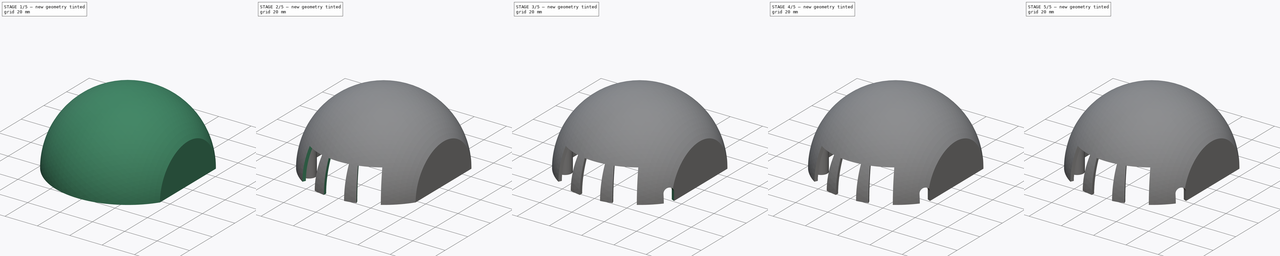
[diagram: build sequence overview — one tinted view per stage of 5, left to right]
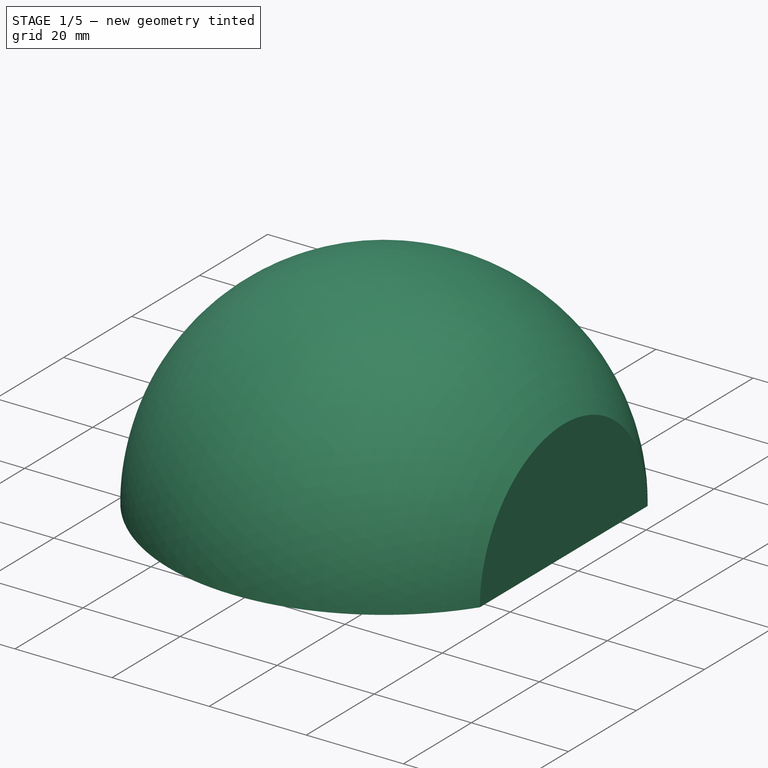
[diagram: stage 1 of 5 — iso view after this stage's code; geometry added in this stage tinted green]
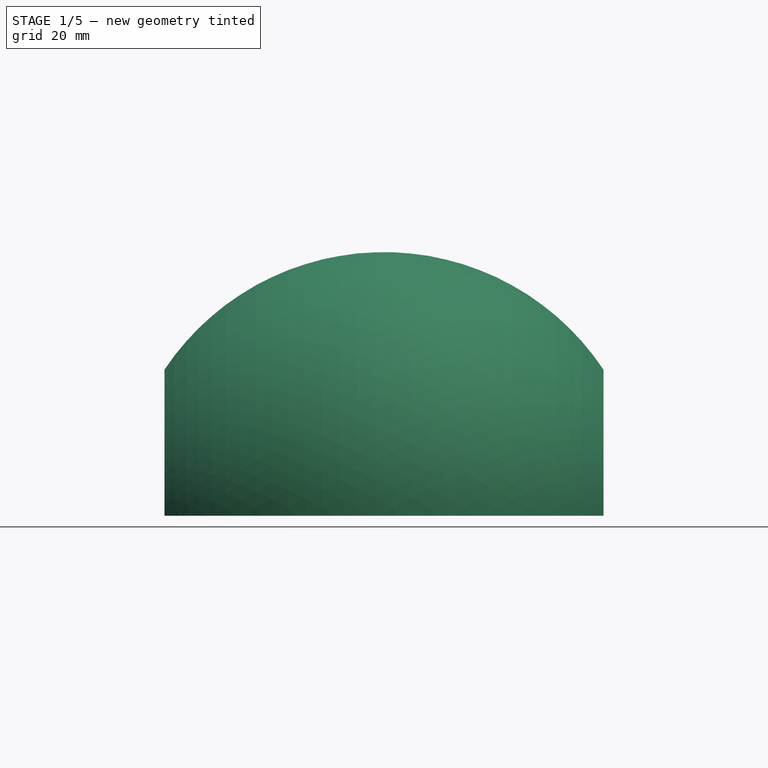
[diagram: stage 1 of 5 — front view after this stage's code; geometry added in this stage tinted green]
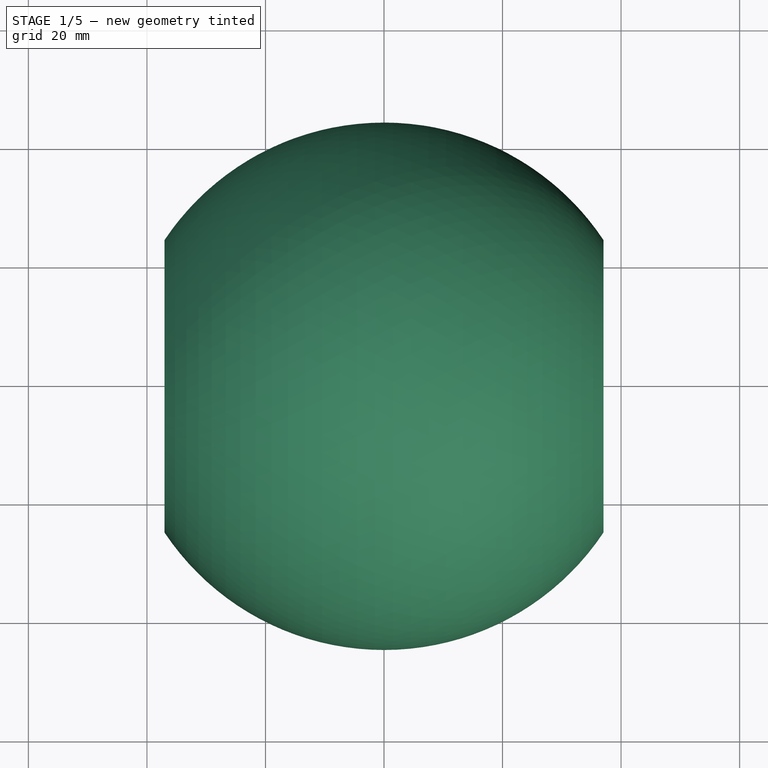
[diagram: stage 1 of 5 — top view after this stage's code; geometry added in this stage tinted green]
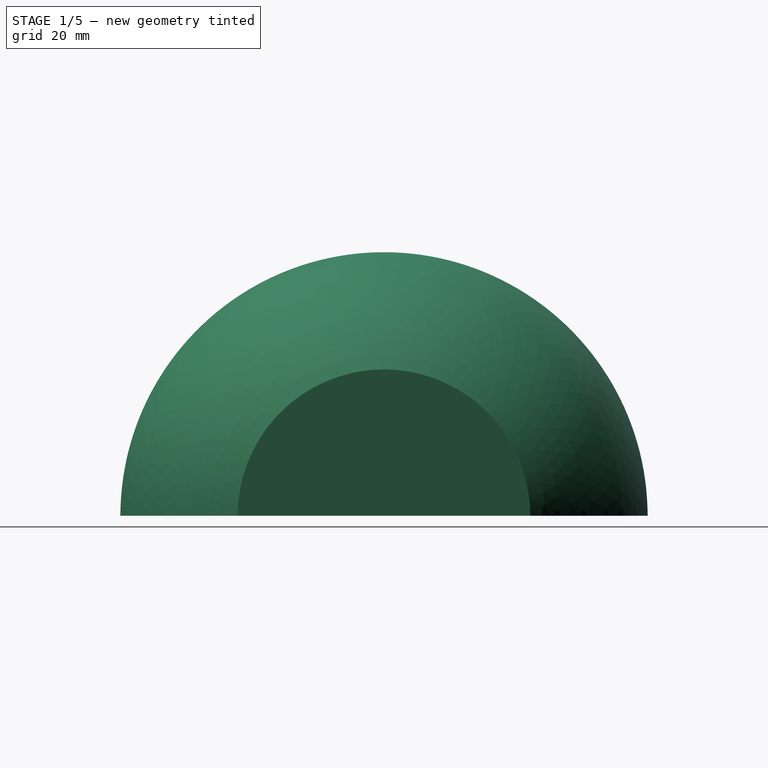
[diagram: stage 1 of 5 — right view after this stage's code; geometry added in this stage tinted green]
FCSTD DOCUMENT  (FreeCAD 0.19R)
Label: depraz_body_v2
License: All rights reserved
LicenseURL: http://en.wikipedia.org/wiki/All_rights_reserved
objects: PartDesign::Mirrored×6, Sketcher::SketchObject×3, PartDesign::PolarPattern×3, PartDesign::MultiTransform×3, PartDesign::Pocket×3, PartDesign::AdditiveSphere×1, PartDesign::Thickness×1, PartDesign::Pad×1, PartDesign::SubtractiveBox×1, PartDesign::Hole×1, PartDesign::AdditiveEllipsoid×1, PartDesign::Body×1
note: 34 computed .brp shape members not serialized (recipe doc carries the construction recipe); baked Part::Feature solids carry a one-line shape summary decoded from their .brp

FEATURE [PartDesign::AdditiveSphere] Sphere
  Angle1 = -56.31
  Angle2 = 56.31
  Angle3 = 180
  AttacherType = Attacher::AttachEngine3D
  Placement = pos=(0,0,0) rot=(0.57735,0.57735,0.57735;2.0944rad)
  Radius = 44.5
  Support = -> [YZ_Plane001,Origin001]
FEATURE [PartDesign::Thickness] Thickness
  Base = -> Sphere [Face4,Face5]
  BaseFeature = -> Sphere
  Intersection = false
  Join = 0
  Mode = 0
  Reversed = true
  SupportTransform = false
  Value = 2
FEATURE [Sketcher::SketchObject] Sketch
  FullyConstrained = true
  MapMode = 5
  Placement = pos=(0,0,0) rot=(1,0,0;3.14159rad)
  Support = -> [Thickness]
  sketch-geometry (1):
    g0: Circle CenterX=-26 CenterY=29 CenterZ=0 NormalX=0 NormalY=0 NormalZ=1 AngleXU=0 Radius=4
  constraints (3):
    c: Radius(g0) = 4
    c: DistanceX(g0,g-1) = 26
    c: DistanceY(g-1,g0) = 29
FEATURE [PartDesign::Pad] Pad
  BaseFeature = -> Thickness
  Direction = (1,1,1)
  Length = 10
  Length2 = 100
  Profile = -> Sketch
  Type = 3
  UpToFace = -> Thickness [Face1]
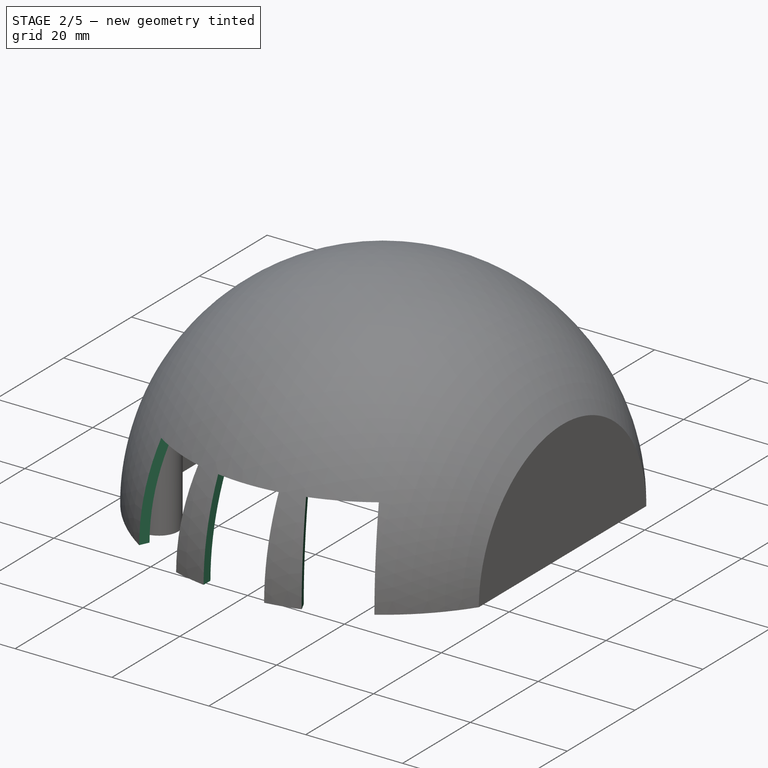
[diagram: stage 2 of 5 — iso view after this stage's code; geometry added in this stage tinted green]
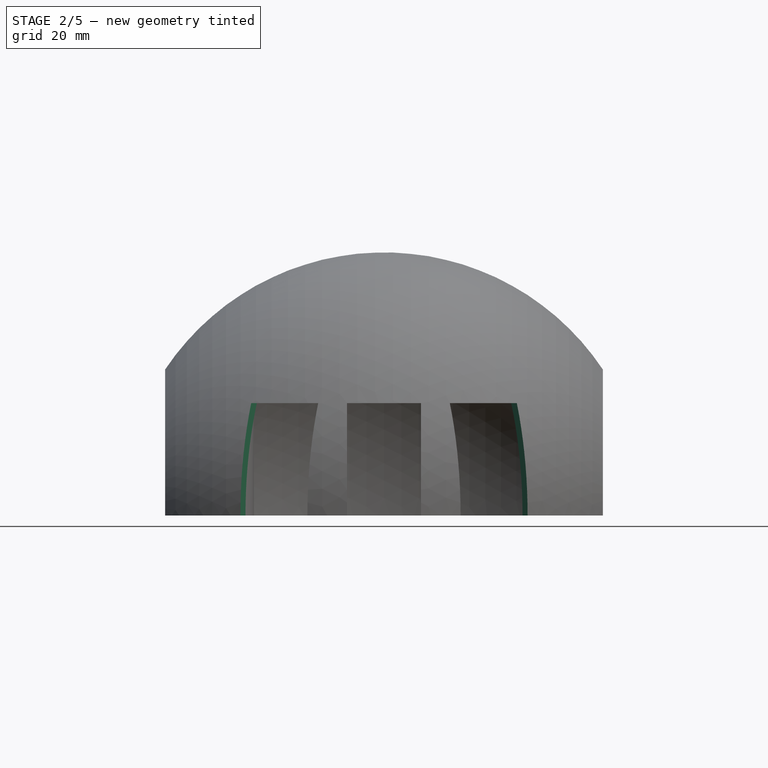
[diagram: stage 2 of 5 — front view after this stage's code; geometry added in this stage tinted green]
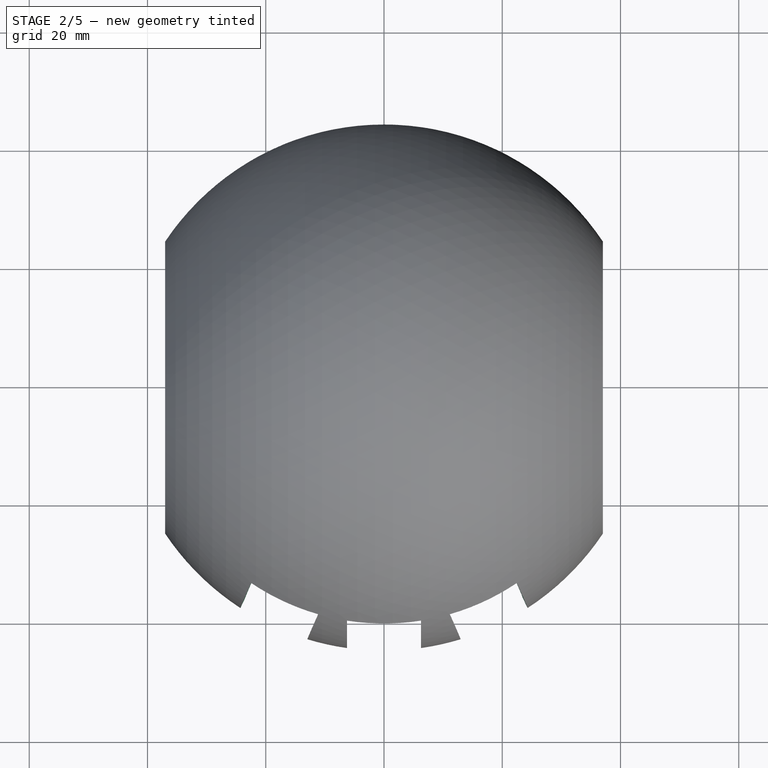
[diagram: stage 2 of 5 — top view after this stage's code; geometry added in this stage tinted green]
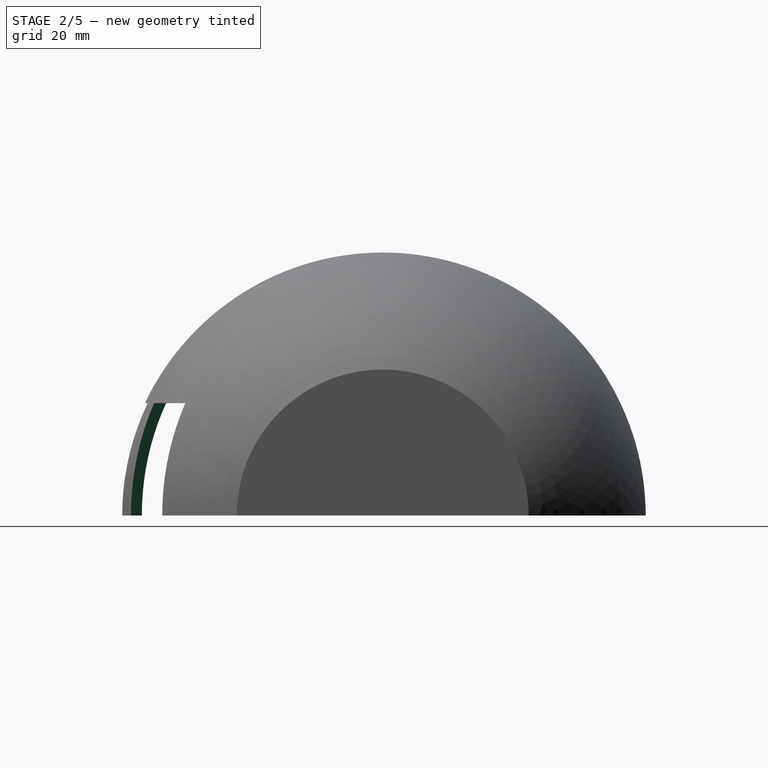
[diagram: stage 2 of 5 — right view after this stage's code; geometry added in this stage tinted green]
FEATURE [PartDesign::SubtractiveBox] Box
  AttacherType = Attacher::AttachEngine3D
  AttachmentOffset = pos=(-6.25,0,35) rot=(0,0,1;0rad)
  BaseFeature = -> Pad
  Height = 15
  Length = 12.5
  MapMode = 5
  Placement = pos=(-6.25,-35,-7.8e-15) rot=(1,0,0;1.5708rad)
  Support = -> [XZ_Plane001]
  Width = 19
FEATURE [PartDesign::PolarPattern] PolarPattern002
  Angle = 25
  Axis = -> Z_Axis001
  BaseFeature = -> Box
  Occurrences = 2
  Originals = -> [Box]
  Placement = pos=(-6.25,-35,-8e-15) rot=(1,0,0;1.5708rad)
FEATURE [PartDesign::PolarPattern] PolarPattern003
  Angle = 335
  Axis = -> Z_Axis001
  BaseFeature = -> PolarPattern002
  Occurrences = 2
  Originals = -> [Box]
  Placement = pos=(-6.25,-35,-8e-15) rot=(1,0,0;1.5708rad)
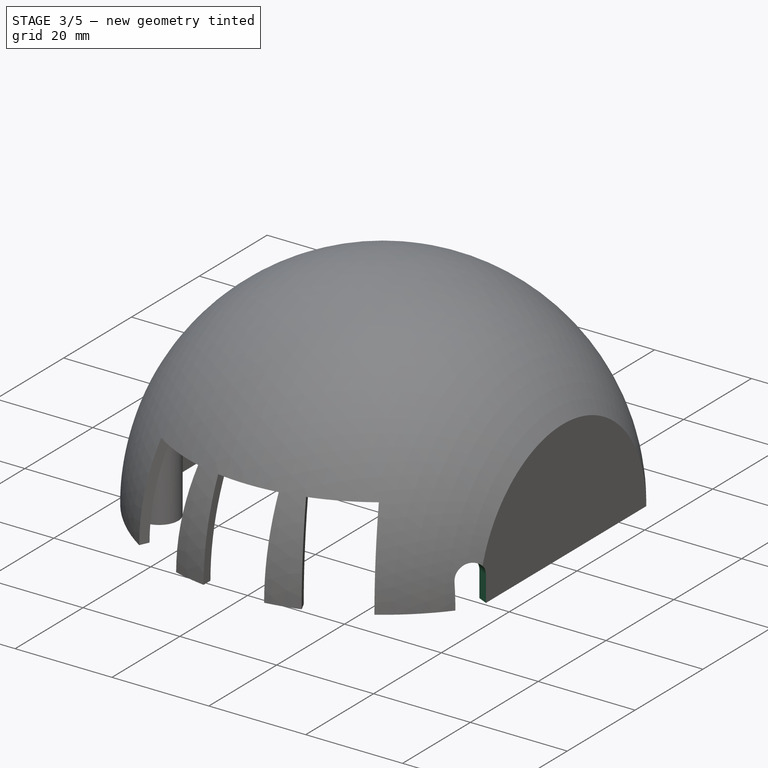
[diagram: stage 3 of 5 — iso view after this stage's code; geometry added in this stage tinted green]
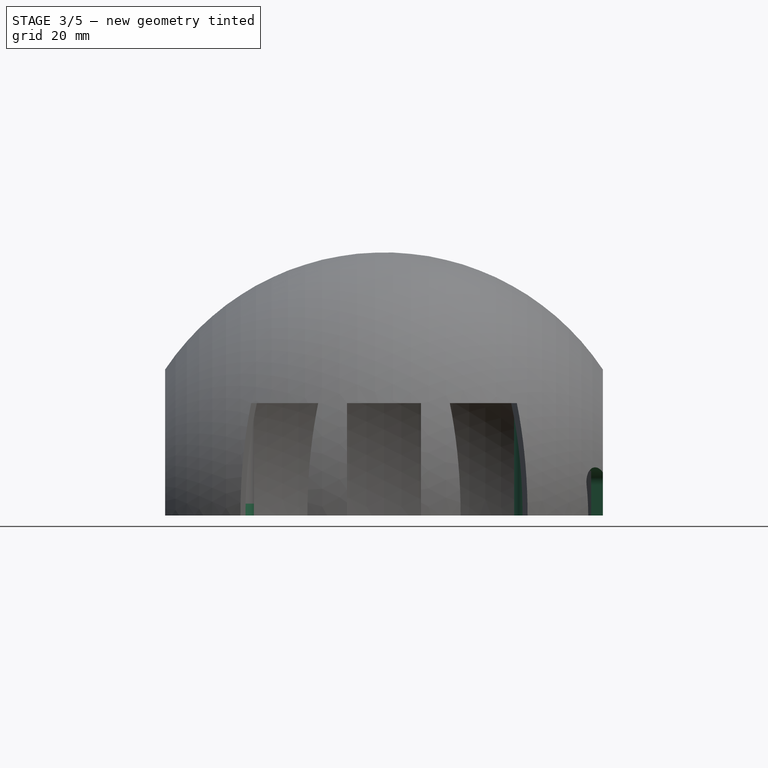
[diagram: stage 3 of 5 — front view after this stage's code; geometry added in this stage tinted green]
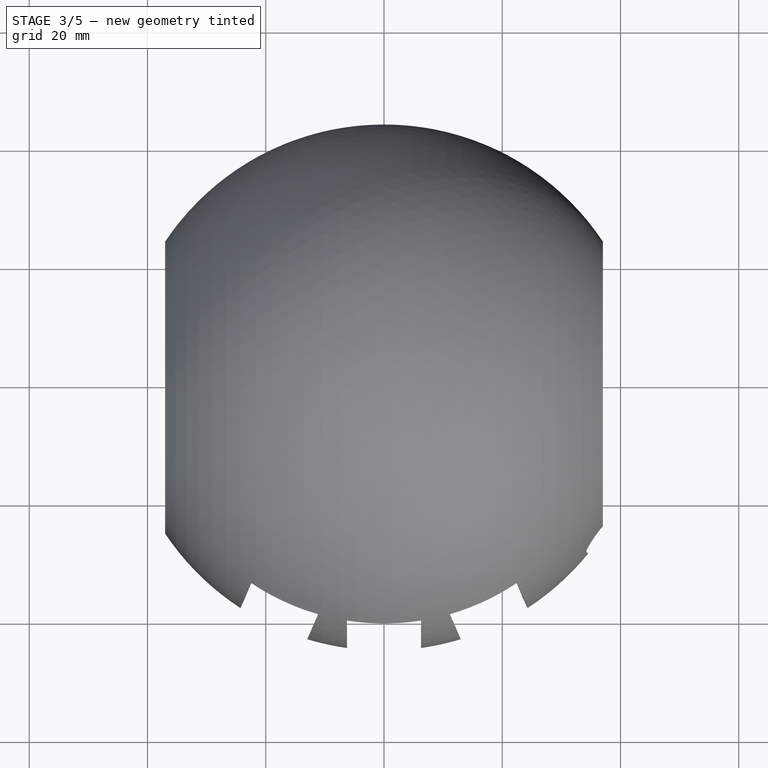
[diagram: stage 3 of 5 — top view after this stage's code; geometry added in this stage tinted green]
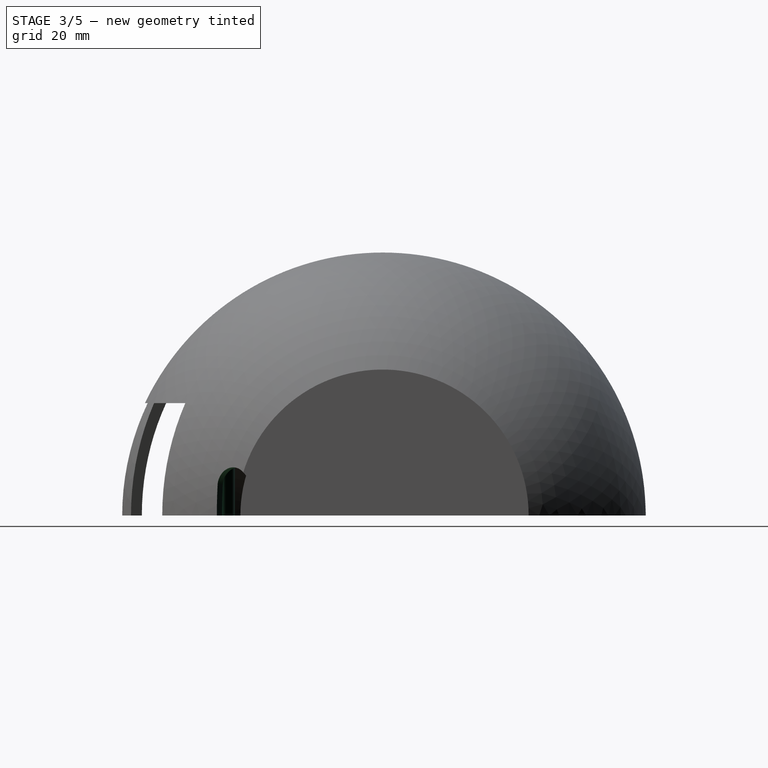
[diagram: stage 3 of 5 — right view after this stage's code; geometry added in this stage tinted green]
FEATURE [PartDesign::Mirrored] Mirrored
  MirrorPlane = -> Sketch [V_Axis]
  Placement = pos=(-6.25,-35,-7.8e-15) rot=(1,0,0;1.5708rad)
FEATURE [PartDesign::Mirrored] Mirrored001
  MirrorPlane = -> Sketch [H_Axis]
  Placement = pos=(-6.25,-35,-7.8e-15) rot=(1,0,0;1.5708rad)
FEATURE [PartDesign::MultiTransform] MultiTransform
  BaseFeature = -> PolarPattern003
  Originals = -> [Pad]
  Placement = pos=(-6.25,-35,-8e-15) rot=(1,0,0;1.5708rad)
  Transformations = -> [Mirrored,Mirrored001]
FEATURE [Sketcher::SketchObject] Sketch001
  FullyConstrained = false
  MapMode = 5
  Placement = pos=(34.1426,-35.5446,4) rot=(0.698575,-0.15487,0.698575;2.83429rad)
  sketch-geometry (4):
    g0: ArcOfCircle CenterX=-4.09086 CenterY=-9.95659 CenterZ=0 NormalX=0 NormalY=0 NormalZ=1 AngleXU=0 Radius=3 StartAngle=1.5708 EndAngle=4.71239
    g1: ArcOfCircle CenterX=1.13801 CenterY=-9.95659 CenterZ=0 NormalX=0 NormalY=0 NormalZ=1 AngleXU=0 Radius=3 StartAngle=4.71239 EndAngle=7.85398
    g2: LineSegment StartX=-4.09086 StartY=-12.9566 StartZ=0 EndX=1.13801 EndY=-12.9566 EndZ=0
    g3: LineSegment StartX=-4.09086 StartY=-6.95659 StartZ=0 EndX=1.13801 EndY=-6.95659 EndZ=0
  constraints (7):
    c: Tangent(g0,g3) = 1.5708
    c: Tangent(g0,g2) = -1.5708
    c: Tangent(g2,g1) = -1.5708
    c: Tangent(g3,g1) = 1.5708
    c: Horizontal(g2)
    c: Equal(g0,g1)
    c: Radius(g1) = 3
FEATURE [PartDesign::Pocket] Pocket
  BaseFeature = -> MultiTransform
  Length = 10
  Length2 = 100
  Placement = pos=(-6.25,-35,-8e-15) rot=(1,0,0;1.5708rad)
  Profile = -> Sketch001
  Type = 0
FEATURE [PartDesign::Pocket] Pocket001
  BaseFeature = -> Pocket
  Length = 2
  Length2 = 100
  Placement = pos=(-6.25,-35,-8e-15) rot=(1,0,0;1.5708rad)
  Profile = -> Sketch
  Type = 0
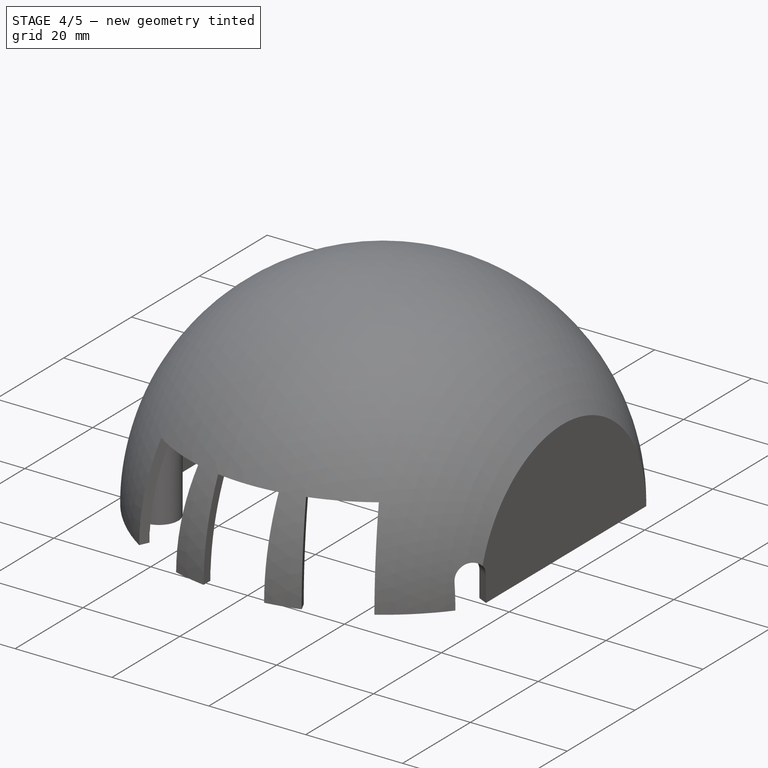
[diagram: stage 4 of 5 — iso view after this stage's code; geometry added in this stage tinted green]
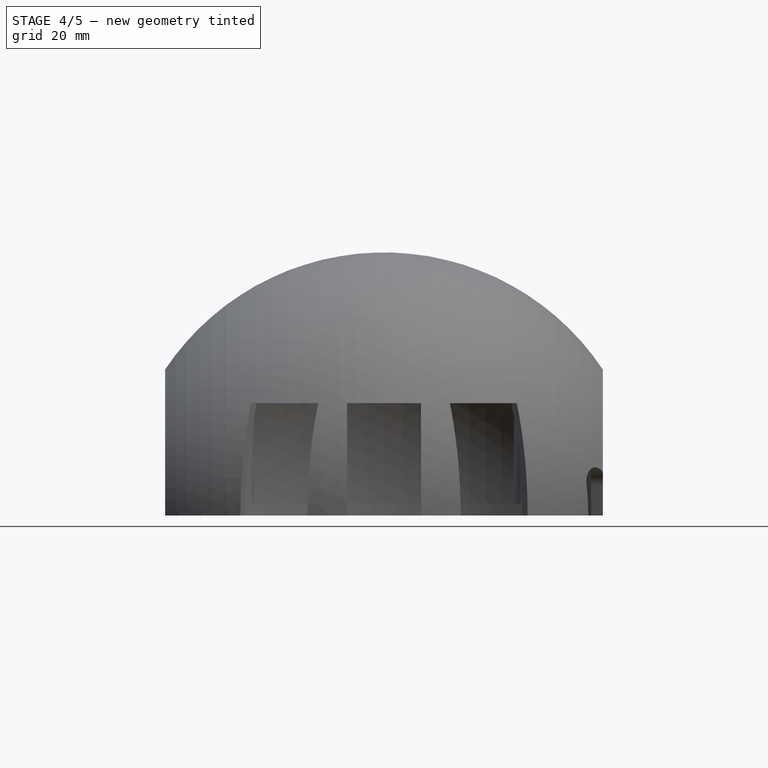
[diagram: stage 4 of 5 — front view after this stage's code; geometry added in this stage tinted green]
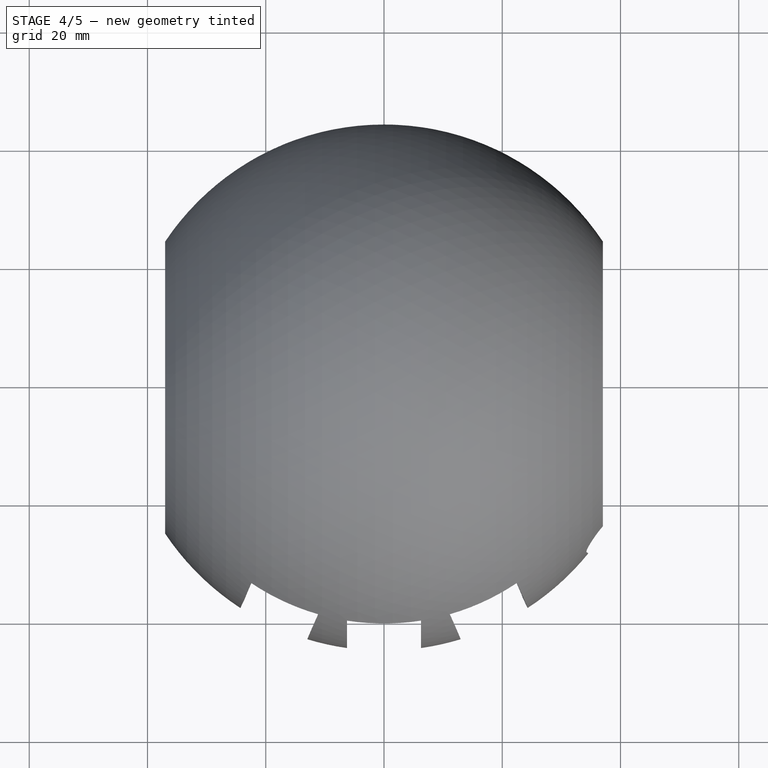
[diagram: stage 4 of 5 — top view after this stage's code; geometry added in this stage tinted green]
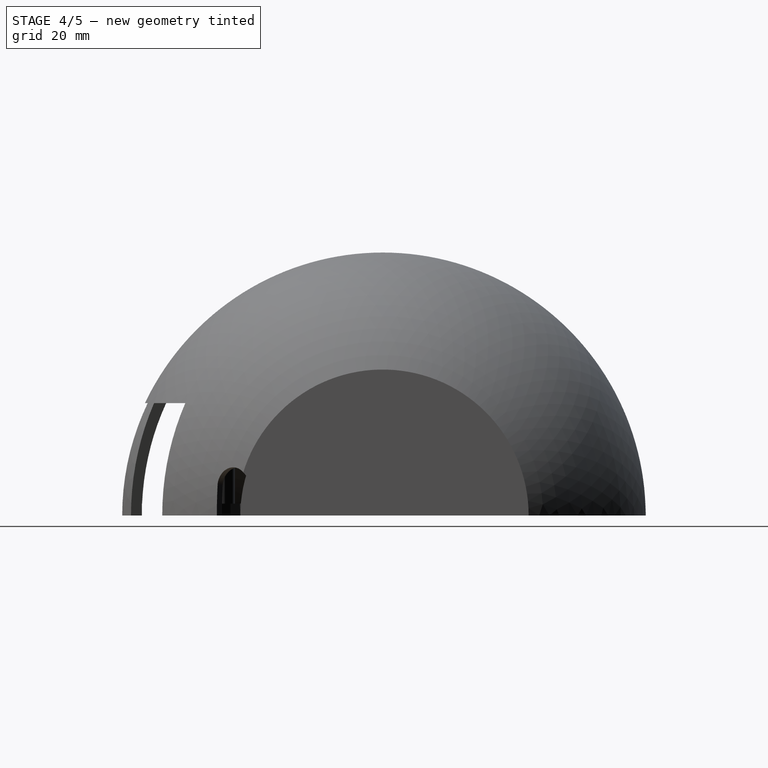
[diagram: stage 4 of 5 — right view after this stage's code; geometry added in this stage tinted green]
FEATURE [PartDesign::Mirrored] Mirrored002
  MirrorPlane = -> Sketch [H_Axis]
  Placement = pos=(-6.25,-35,-7.8e-15) rot=(1,0,0;1.5708rad)
FEATURE [PartDesign::Mirrored] Mirrored003
  MirrorPlane = -> Sketch [V_Axis]
  Placement = pos=(-6.25,-35,-7.8e-15) rot=(1,0,0;1.5708rad)
FEATURE [PartDesign::MultiTransform] MultiTransform001
  BaseFeature = -> Pocket001
  Originals = -> [Pocket001]
  Placement = pos=(-6.25,-35,-8e-15) rot=(1,0,0;1.5708rad)
  Transformations = -> [Mirrored002,Mirrored003]
FEATURE [Sketcher::SketchObject] Sketch002
  FullyConstrained = false
  MapMode = 5
  Support = -> [XY_Plane001]
  sketch-geometry (4):
    g0: ArcOfCircle CenterX=0 CenterY=0 CenterZ=0 NormalX=0 NormalY=0 NormalZ=1 AngleXU=0 Radius=42.5 StartAngle=0.603191 EndAngle=2.5384
    g1: LineSegment StartX=-35 StartY=24.1091 StartZ=0 EndX=-35 EndY=-24.1091 EndZ=0
    g2: LineSegment StartX=35 StartY=24.1091 StartZ=0 EndX=35 EndY=-24.1091 EndZ=0
    g3: ArcOfCircle CenterX=0 CenterY=0 CenterZ=0 NormalX=0 NormalY=0 NormalZ=1 AngleXU=0 Radius=42.5 StartAngle=3.74478 EndAngle=5.67999
  constraints (10):
    c: Coincident(g0,g-1)
    c: Radius(g0) = 42.5
    c: Vertical(g1)
    c: Vertical(g2)
    c: Coincident(g3,g2)
    c: Coincident(g2,g0)
    c: Equal(g0,g3)
    c: Coincident(g3,g1)
    c: Coincident(g0,g3)
    c: Coincident(g1,g0)
FEATURE [PartDesign::Pocket] Pocket002
  BaseFeature = -> MultiTransform001
  Length = 2
  Length2 = 100
  Placement = pos=(-6.25,-35,-8e-15) rot=(1,0,0;1.5708rad)
  Profile = -> Sketch002
  Reversed = true
  Type = 0
FEATURE [PartDesign::Hole] Hole
  BaseFeature = -> Pocket002
  Depth = 10
  DepthType = 0
  Diameter = 3.3
  DrillForDepth = false
  DrillPoint = 1
  DrillPointAngle = 118
  HoleCutCountersinkAngle = 90
  HoleCutCustomValues = false
  HoleCutDepth = 0
  HoleCutDiameter = 6.1
  HoleCutType = 0
  ModelActualThread = false
  Placement = pos=(-6.25,-35,-8e-15) rot=(1,0,0;1.5708rad)
  Profile = -> Sketch
  Tapered = false
  TaperedAngle = 90
  ThreadAngle = 0
  ThreadClass = 0
  ThreadCutOffInner = 0
  ThreadCutOffOuter = 0
  ThreadDirection = 0
  ThreadFit = 0
  ThreadPitch = 0
  ThreadSize = 0
  ThreadType = 0
  Threaded = false
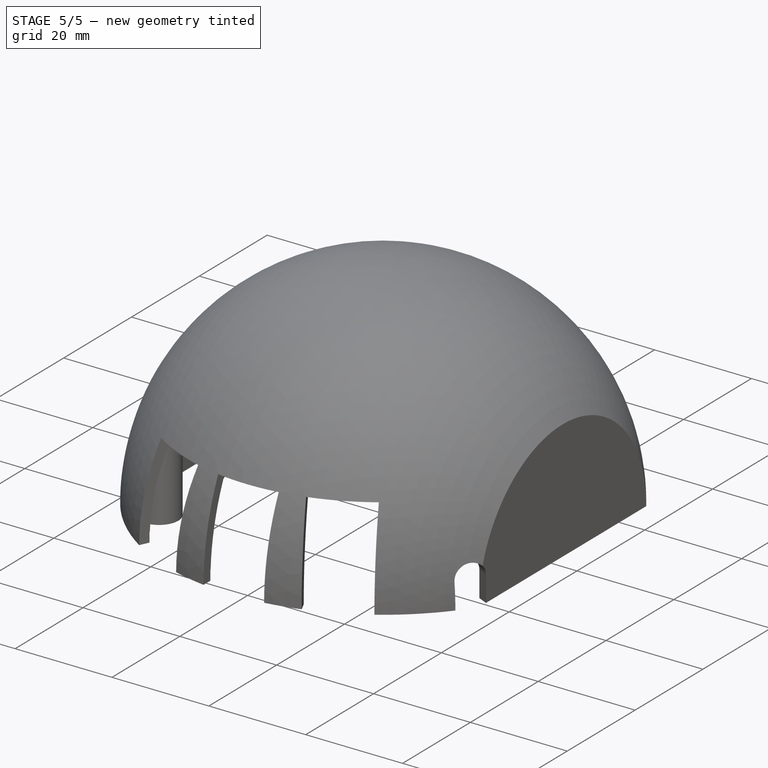
[diagram: stage 5 of 5 — iso view after this stage's code; geometry added in this stage tinted green]
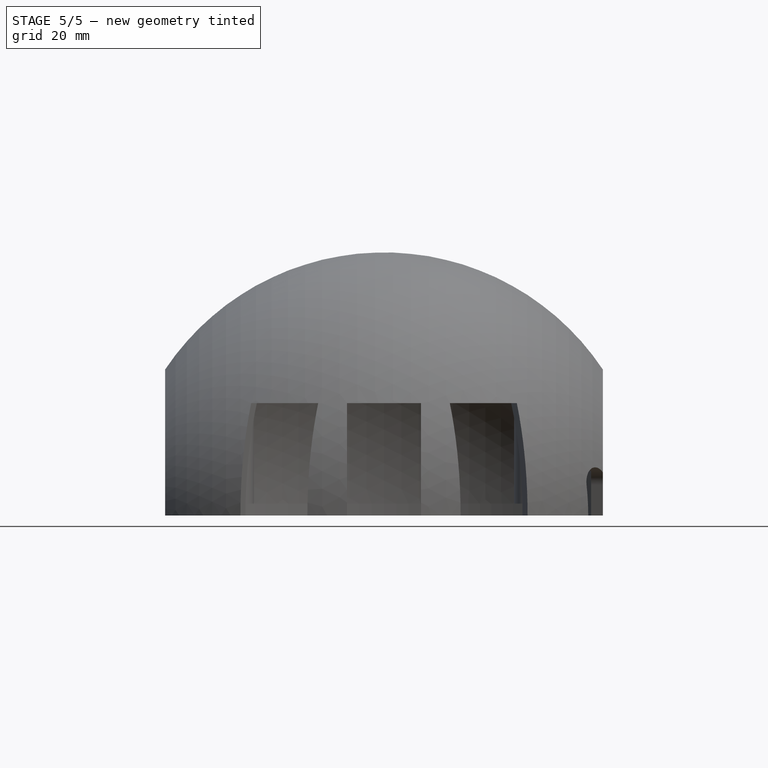
[diagram: stage 5 of 5 — front view after this stage's code; geometry added in this stage tinted green]
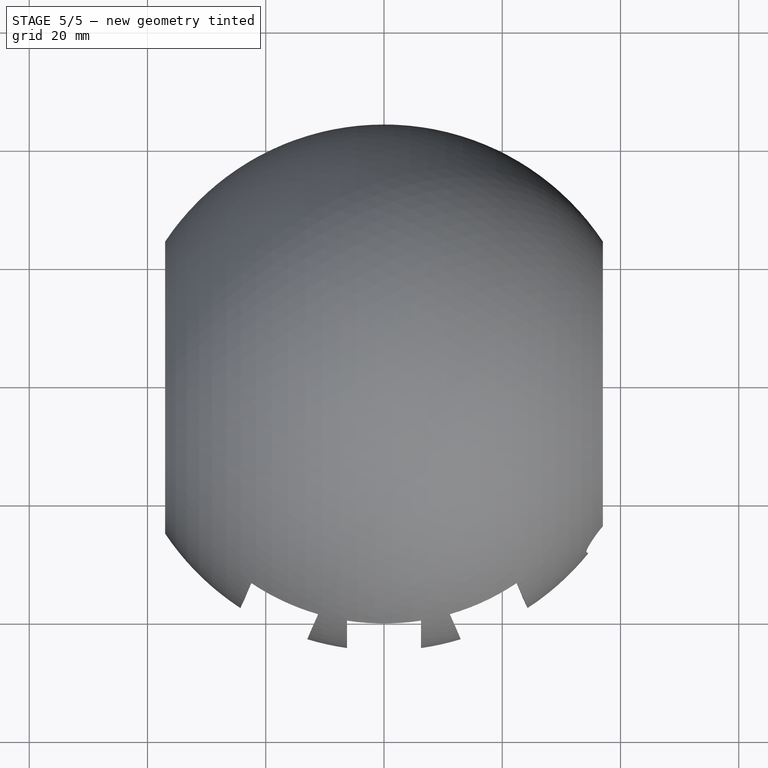
[diagram: stage 5 of 5 — top view after this stage's code; geometry added in this stage tinted green]
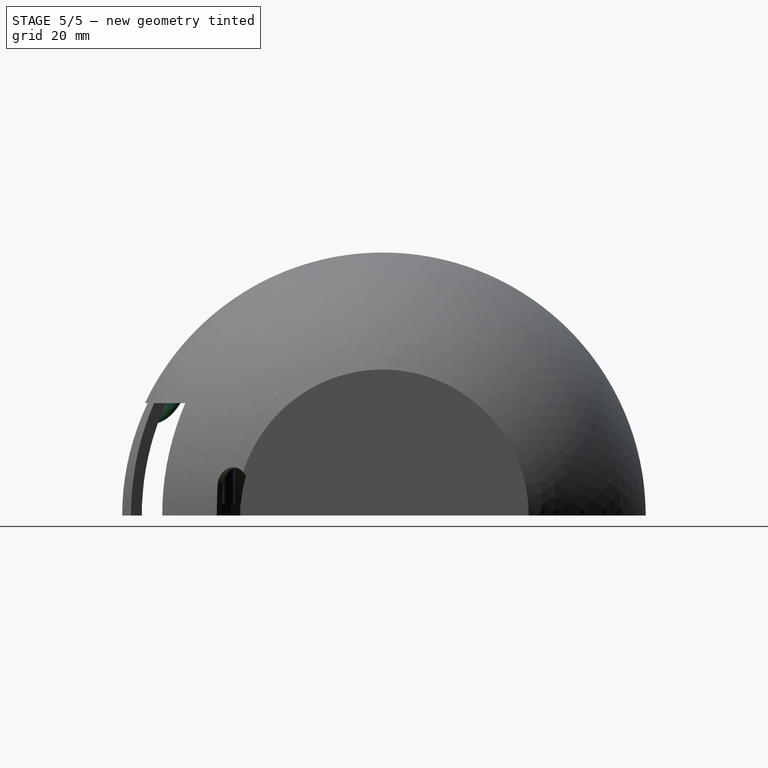
[diagram: stage 5 of 5 — right view after this stage's code; geometry added in this stage tinted green]
FEATURE [PartDesign::Mirrored] Mirrored004
  MirrorPlane = -> Sketch [V_Axis]
  Placement = pos=(-6.25,-35,-7.8e-15) rot=(1,0,0;1.5708rad)
FEATURE [PartDesign::Mirrored] Mirrored005
  MirrorPlane = -> Sketch [H_Axis]
  Placement = pos=(-6.25,-35,-7.8e-15) rot=(1,0,0;1.5708rad)
FEATURE [PartDesign::MultiTransform] MultiTransform002
  BaseFeature = -> Hole
  Originals = -> [Hole]
  Placement = pos=(-6.25,-35,-8e-15) rot=(1,0,0;1.5708rad)
  Transformations = -> [Mirrored004,Mirrored005]
FEATURE [PartDesign::AdditiveEllipsoid] Ellipsoid
  Angle1 = -90
  Angle2 = 90
  Angle3 = 180
  AttacherType = Attacher::AttachEngine3D
  AttachmentOffset = pos=(8,-36.5,21) rot=(-0.961939,-0.264858,-0.067265;0.516253rad)
  BaseFeature = -> MultiTransform002
  MapMode = 5
  Placement = pos=(8,-36.5,21) rot=(-0.961939,-0.264858,-0.067265;0.516253rad)
  Radius1 = 6
  Radius2 = 1
  Radius3 = 3
  Support = -> [XY_Plane001]
FEATURE [PartDesign::PolarPattern] PolarPattern
  Angle = 335
  Axis = -> Z_Axis001
  BaseFeature = -> Ellipsoid
  Occurrences = 2
  Originals = -> [Ellipsoid]
  Placement = pos=(8,-36.5,21) rot=(-0.961939,-0.264858,-0.067265;0.516253rad)
FEATURE [PartDesign::Body] Body001
  Group = -> [Sphere,Thickness,Sketch,Pad,Box,PolarPattern002,PolarPattern003,MultiTransform,Mirrored,Mirrored001,Sketch001,Pocket,Pocket001,MultiTransform001,Mirrored002,Mirrored003,Sketch002,Pocket002,Hole,MultiTransform002,Mirrored004,Mirrored005,Ellipsoid,PolarPattern]
  Origin = -> Origin001
  Tip = -> PolarPattern
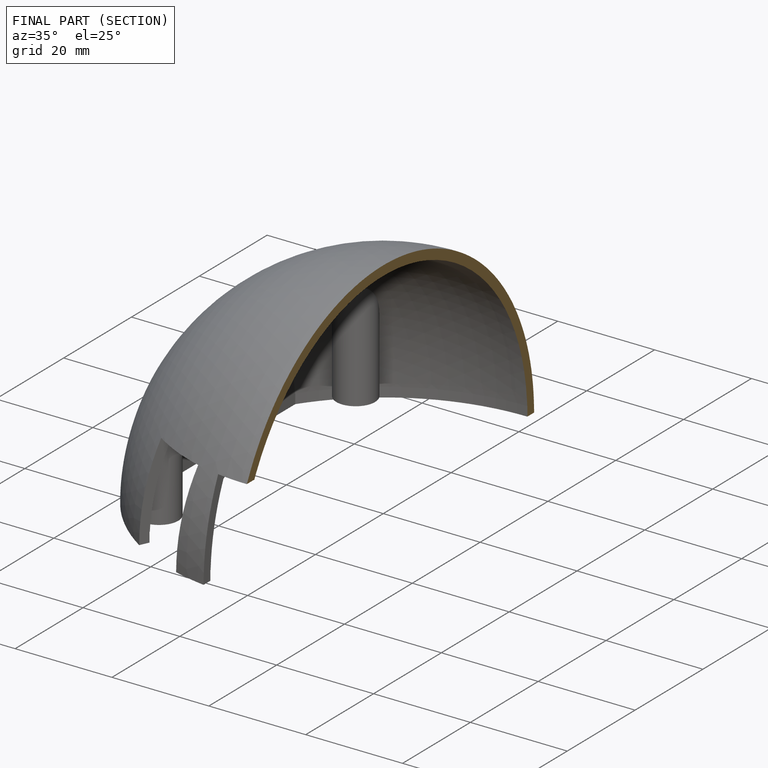
[diagram: finished part — half-section view (interior)]
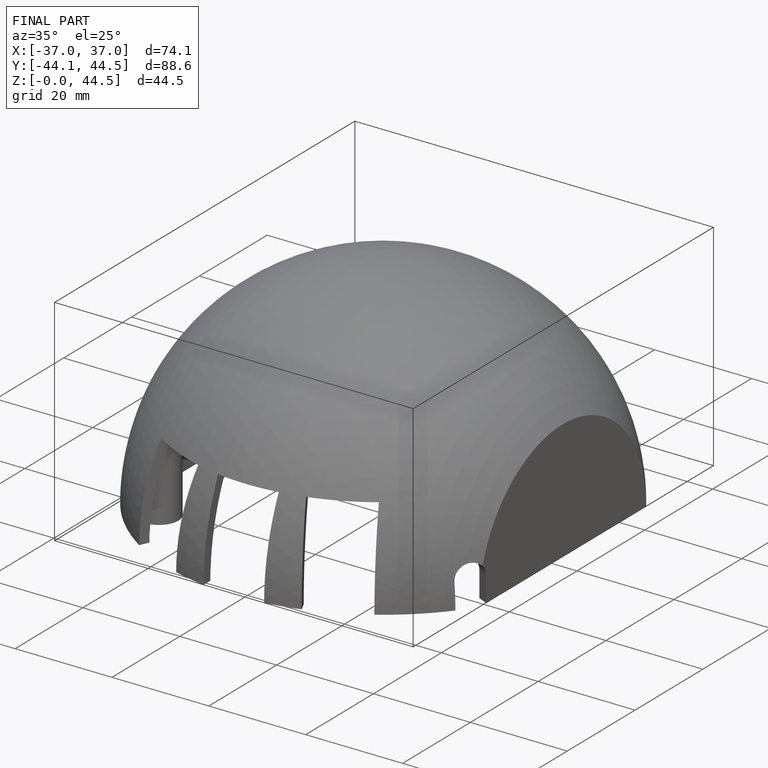
[diagram: finished part — iso view with bounding-box wireframe]
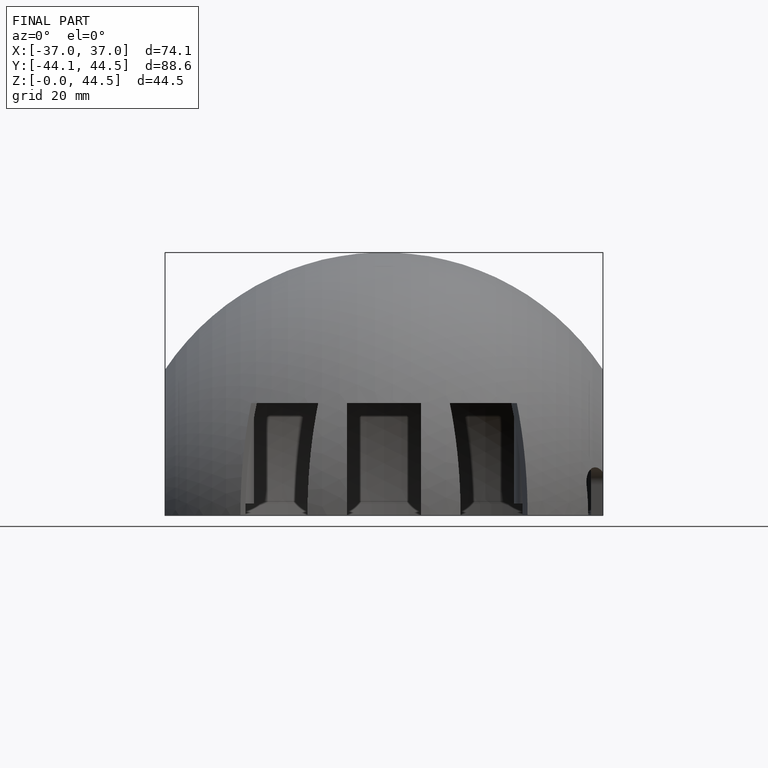
[diagram: finished part — front view with bounding-box wireframe]
